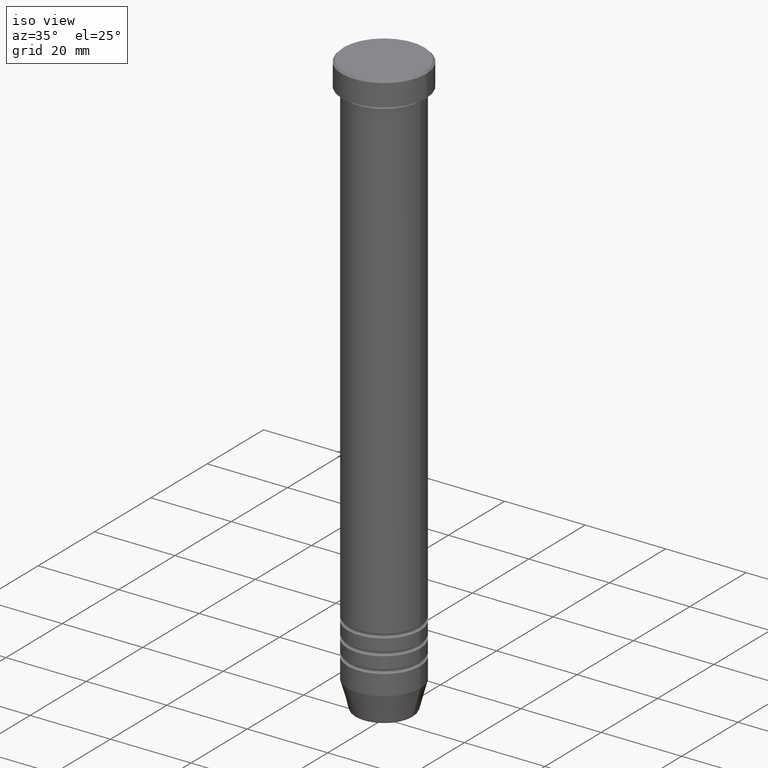
[diagram: clean part render]
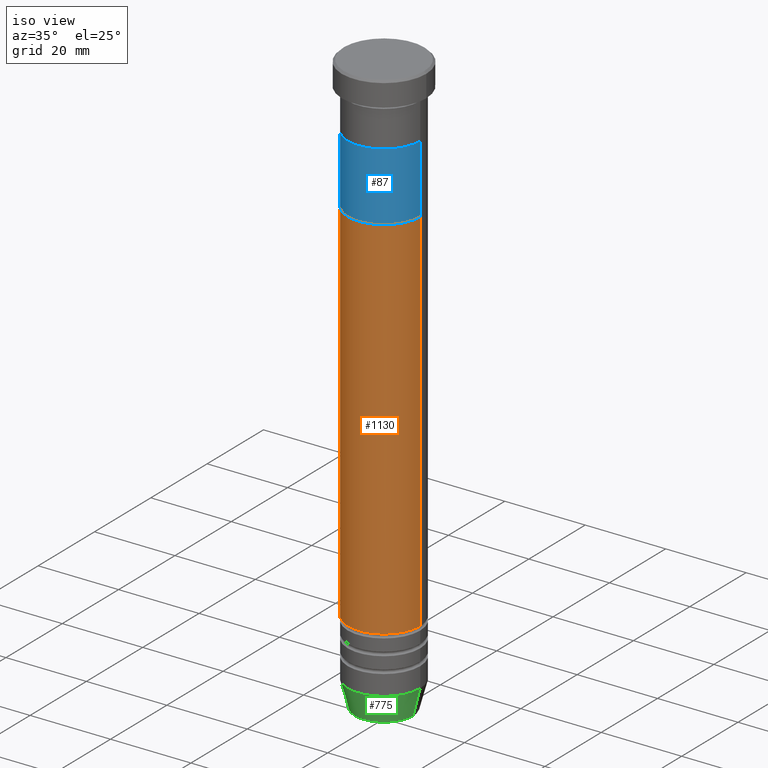
[diagram: same view with three faces highlighted in distinct colors, each labeled with its STEP entity id]
A machine part, iso view with three faces highlighted in distinct colors.
Their STEP definitions:

[orange] entity #1130 — the highlighted cylindrical surface (partial cylindrical patch) has radius 9 mm, axis along (-0, -0, 1).
#7 = CIRCLE ( 'NONE', #114, 9.000000000000000000 ) ;
#10 = DIRECTION ( 'NONE',  ( 1.000000000000000000, 0.000000000000000000, 0.000000000000000000 ) ) ;
#25 = DIRECTION ( 'NONE',  ( -0.000000000000000000, -0.000000000000000000, 1.000000000000000000 ) ) ;
#52 = VERTEX_POINT ( 'NONE', #700 ) ;
#60 = VECTOR ( 'NONE', #25, 1000.000000000000000 ) ;
#84 = CIRCLE ( 'NONE', #665, 8.999999999999992895 ) ;
#114 = AXIS2_PLACEMENT_3D ( 'NONE', #594, #143, #694 ) ;
#143 = DIRECTION ( 'NONE',  ( -0.000000000000000000, -0.000000000000000000, 1.000000000000000000 ) ) ;
#144 = EDGE_LOOP ( 'NONE', ( #855, #834, #1123, #1098 ) ) ;
#182 = DIRECTION ( 'NONE',  ( -0.000000000000000000, -0.000000000000000000, 1.000000000000000000 ) ) ;
#213 = LINE ( 'NONE', #558, #60 ) ;
#246 = EDGE_CURVE ( 'NONE', #52, #868, #962, .T. ) ;
#339 = AXIS2_PLACEMENT_3D ( 'NONE', #606, #893, #529 ) ;
#371 = EDGE_CURVE ( 'NONE', #582, #680, #213, .T. ) ;
#509 = EDGE_CURVE ( 'NONE', #680, #868, #7, .T. ) ;
#517 = VECTOR ( 'NONE', #182, 1000.000000000000000 ) ;
#529 = DIRECTION ( 'NONE',  ( 1.000000000000000000, 0.000000000000000000, 0.000000000000000000 ) ) ;
#534 = DIRECTION ( 'NONE',  ( -0.000000000000000000, -0.000000000000000000, 1.000000000000000000 ) ) ;
#558 = CARTESIAN_POINT ( 'NONE',  ( -8.999999999999996447, 1.102182119232617319E-15, 0.000000000000000000 ) ) ;
#582 = VERTEX_POINT ( 'NONE', #1108 ) ;
#594 = CARTESIAN_POINT ( 'NONE',  ( 0.000000000000000000, 0.000000000000000000, -33.00000000000000000 ) ) ;
#606 = CARTESIAN_POINT ( 'NONE',  ( 0.000000000000000000, 0.000000000000000000, 0.000000000000000000 ) ) ;
#607 = CARTESIAN_POINT ( 'NONE',  ( 0.000000000000000000, 0.000000000000000000, -125.0000000000000284 ) ) ;
#665 = AXIS2_PLACEMENT_3D ( 'NONE', #607, #534, #10 ) ;
#680 = VERTEX_POINT ( 'NONE', #815 ) ;
#694 = DIRECTION ( 'NONE',  ( 1.000000000000000000, 0.000000000000000000, 0.000000000000000000 ) ) ;
#700 = CARTESIAN_POINT ( 'NONE',  ( 8.999999999999992895, 0.000000000000000000, -125.0000000000000284 ) ) ;
#791 = CARTESIAN_POINT ( 'NONE',  ( 8.999999999999996447, 0.000000000000000000, 0.000000000000000000 ) ) ;
#815 = CARTESIAN_POINT ( 'NONE',  ( -9.000000000000000000, 1.102182119232617911E-15, -33.00000000000000000 ) ) ;
#834 = ORIENTED_EDGE ( 'NONE', *, *, #922, .T. ) ;
#855 = ORIENTED_EDGE ( 'NONE', *, *, #371, .F. ) ;
#862 = FACE_OUTER_BOUND ( 'NONE', #144, .T. ) ;
#868 = VERTEX_POINT ( 'NONE', #1148 ) ;
#893 = DIRECTION ( 'NONE',  ( -0.000000000000000000, -0.000000000000000000, 1.000000000000000000 ) ) ;
#922 = EDGE_CURVE ( 'NONE', #582, #52, #84, .T. ) ;
#962 = LINE ( 'NONE', #791, #517 ) ;
#1026 = CYLINDRICAL_SURFACE ( 'NONE', #339, 8.999999999999996447 ) ;
#1098 = ORIENTED_EDGE ( 'NONE', *, *, #509, .F. ) ;
#1108 = CARTESIAN_POINT ( 'NONE',  ( -8.999999999999992895, 1.102182119232617122E-15, -125.0000000000000284 ) ) ;
#1123 = ORIENTED_EDGE ( 'NONE', *, *, #246, .T. ) ;
#1130 = ADVANCED_FACE ( 'NONE', ( #862 ), #1026, .T. ) ;
#1148 = CARTESIAN_POINT ( 'NONE',  ( 9.000000000000000000, 0.000000000000000000, -33.00000000000000000 ) ) ;

[blue] entity #87 — the highlighted cylindrical surface (partial cylindrical patch) has radius 9 mm, axis along (-0, -0, 1).
#3 = DIRECTION ( 'NONE',  ( -1.000000000000000000, 0.000000000000000000, 0.000000000000000000 ) ) ;
#6 = AXIS2_PLACEMENT_3D ( 'NONE', #518, #284, #166 ) ;
#51 = EDGE_CURVE ( 'NONE', #59, #151, #453, .T. ) ;
#58 = VECTOR ( 'NONE', #333, 1000.000000000000000 ) ;
#59 = VERTEX_POINT ( 'NONE', #73 ) ;
#73 = CARTESIAN_POINT ( 'NONE',  ( 9.000000000000000000, 0.000000000000000000, -33.00000000000000000 ) ) ;
#87 = ADVANCED_FACE ( 'NONE', ( #347 ), #424, .T. ) ;
#151 = VERTEX_POINT ( 'NONE', #1072 ) ;
#166 = DIRECTION ( 'NONE',  ( 1.000000000000000000, 0.000000000000000000, 0.000000000000000000 ) ) ;
#185 = EDGE_CURVE ( 'NONE', #758, #747, #1111, .T. ) ;
#254 = DIRECTION ( 'NONE',  ( -0.000000000000000000, -0.000000000000000000, 1.000000000000000000 ) ) ;
#284 = DIRECTION ( 'NONE',  ( -0.000000000000000000, -0.000000000000000000, 1.000000000000000000 ) ) ;
#333 = DIRECTION ( 'NONE',  ( -0.000000000000000000, -0.000000000000000000, 1.000000000000000000 ) ) ;
#347 = FACE_OUTER_BOUND ( 'NONE', #1090, .T. ) ;
#393 = CARTESIAN_POINT ( 'NONE',  ( -9.000000000000000000, 1.102182119232617714E-15, -16.00000000000000000 ) ) ;
#424 = CYLINDRICAL_SURFACE ( 'NONE', #6, 9.000000000000000000 ) ;
#442 = CARTESIAN_POINT ( 'NONE',  ( 0.000000000000000000, 0.000000000000000000, -16.00000000000000000 ) ) ;
#453 = LINE ( 'NONE', #960, #58 ) ;
#470 = AXIS2_PLACEMENT_3D ( 'NONE', #442, #1061, #3 ) ;
#476 = ORIENTED_EDGE ( 'NONE', *, *, #891, .T. ) ;
#493 = CARTESIAN_POINT ( 'NONE',  ( 0.000000000000000000, 0.000000000000000000, -33.00000000000000000 ) ) ;
#518 = CARTESIAN_POINT ( 'NONE',  ( 0.000000000000000000, 0.000000000000000000, -33.00000000000000000 ) ) ;
#589 = VECTOR ( 'NONE', #254, 1000.000000000000000 ) ;
#591 = DIRECTION ( 'NONE',  ( -1.000000000000000000, 0.000000000000000000, 0.000000000000000000 ) ) ;
#658 = DIRECTION ( 'NONE',  ( 0.000000000000000000, 0.000000000000000000, -1.000000000000000000 ) ) ;
#682 = ORIENTED_EDGE ( 'NONE', *, *, #51, .T. ) ;
#719 = EDGE_CURVE ( 'NONE', #59, #758, #903, .T. ) ;
#747 = VERTEX_POINT ( 'NONE', #393 ) ;
#748 = CARTESIAN_POINT ( 'NONE',  ( -9.000000000000000000, 1.102182119232617714E-15, -33.00000000000000000 ) ) ;
#758 = VERTEX_POINT ( 'NONE', #748 ) ;
#844 = ORIENTED_EDGE ( 'NONE', *, *, #719, .F. ) ;
#891 = EDGE_CURVE ( 'NONE', #151, #747, #1142, .T. ) ;
#903 = CIRCLE ( 'NONE', #1120, 9.000000000000000000 ) ;
#926 = CARTESIAN_POINT ( 'NONE',  ( -9.000000000000000000, 1.102182119232617714E-15, -33.00000000000000000 ) ) ;
#960 = CARTESIAN_POINT ( 'NONE',  ( 9.000000000000000000, 0.000000000000000000, -33.00000000000000000 ) ) ;
#1061 = DIRECTION ( 'NONE',  ( 0.000000000000000000, 0.000000000000000000, -1.000000000000000000 ) ) ;
#1072 = CARTESIAN_POINT ( 'NONE',  ( 9.000000000000000000, 0.000000000000000000, -16.00000000000000000 ) ) ;
#1090 = EDGE_LOOP ( 'NONE', ( #1127, #844, #682, #476 ) ) ;
#1111 = LINE ( 'NONE', #926, #589 ) ;
#1120 = AXIS2_PLACEMENT_3D ( 'NONE', #493, #658, #591 ) ;
#1127 = ORIENTED_EDGE ( 'NONE', *, *, #185, .F. ) ;
#1142 = CIRCLE ( 'NONE', #470, 9.000000000000000000 ) ;

[green] entity #775 — the highlighted conical surface has half-angle 15 deg.
#22 = VECTOR ( 'NONE', #619, 1000.000000000000000 ) ;
#45 = VERTEX_POINT ( 'NONE', #986 ) ;
#112 = ORIENTED_EDGE ( 'NONE', *, *, #766, .T. ) ;
#125 = CARTESIAN_POINT ( 'NONE',  ( 0.000000000000000000, 0.000000000000000000, -146.0000000000000284 ) ) ;
#128 = AXIS2_PLACEMENT_3D ( 'NONE', #820, #923, #502 ) ;
#149 = CARTESIAN_POINT ( 'NONE',  ( 9.000000000000000000, 0.000000000000000000, -139.0000000000000000 ) ) ;
#235 = DIRECTION ( 'NONE',  ( -0.000000000000000000, -0.000000000000000000, 1.000000000000000000 ) ) ;
#240 = DIRECTION ( 'NONE',  ( -0.000000000000000000, -0.000000000000000000, 1.000000000000000000 ) ) ;
#261 = CARTESIAN_POINT ( 'NONE',  ( -7.124355652982134579, 8.724819346411922144E-16, -146.0000000000000284 ) ) ;
#268 = LINE ( 'NONE', #261, #22 ) ;
#293 = AXIS2_PLACEMENT_3D ( 'NONE', #125, #240, #1021 ) ;
#294 = EDGE_CURVE ( 'NONE', #45, #848, #268, .T. ) ;
#302 = CARTESIAN_POINT ( 'NONE',  ( 7.124355652982134579, 0.000000000000000000, -146.0000000000000284 ) ) ;
#307 = DIRECTION ( 'NONE',  ( 0.2588190451025213501, 0.000000000000000000, 0.9659258262890680902 ) ) ;
#312 = CIRCLE ( 'NONE', #128, 9.000000000000000000 ) ;
#367 = VECTOR ( 'NONE', #307, 1000.000000000000000 ) ;
#462 = ORIENTED_EDGE ( 'NONE', *, *, #294, .F. ) ;
#467 = ORIENTED_EDGE ( 'NONE', *, *, #738, .T. ) ;
#502 = DIRECTION ( 'NONE',  ( 1.000000000000000000, 0.000000000000000000, 0.000000000000000000 ) ) ;
#515 = CARTESIAN_POINT ( 'NONE',  ( -9.000000000000000000, 1.102182119232617714E-15, -139.0000000000000000 ) ) ;
#521 = CONICAL_SURFACE ( 'NONE', #293, 7.124355652982134579, 0.2617993877991500740 ) ;
#550 = CARTESIAN_POINT ( 'NONE',  ( 7.223655072137190380, 0.000000000000000000, -145.6294095225512990 ) ) ;
#576 = CARTESIAN_POINT ( 'NONE',  ( 0.000000000000000000, 0.000000000000000000, -145.6294095225512990 ) ) ;
#588 = VERTEX_POINT ( 'NONE', #149 ) ;
#613 = AXIS2_PLACEMENT_3D ( 'NONE', #576, #235, #851 ) ;
#619 = DIRECTION ( 'NONE',  ( -0.2588190451025213501, 3.169619151431772337E-17, 0.9659258262890680902 ) ) ;
#659 = EDGE_LOOP ( 'NONE', ( #462, #467, #112, #1023 ) ) ;
#663 = VERTEX_POINT ( 'NONE', #550 ) ;
#707 = EDGE_CURVE ( 'NONE', #848, #588, #312, .T. ) ;
#738 = EDGE_CURVE ( 'NONE', #45, #663, #1096, .T. ) ;
#766 = EDGE_CURVE ( 'NONE', #663, #588, #1099, .T. ) ;
#775 = ADVANCED_FACE ( 'NONE', ( #1012 ), #521, .T. ) ;
#820 = CARTESIAN_POINT ( 'NONE',  ( 0.000000000000000000, 0.000000000000000000, -139.0000000000000000 ) ) ;
#848 = VERTEX_POINT ( 'NONE', #515 ) ;
#851 = DIRECTION ( 'NONE',  ( -1.000000000000000000, 0.000000000000000000, 0.000000000000000000 ) ) ;
#923 = DIRECTION ( 'NONE',  ( -0.000000000000000000, -0.000000000000000000, 1.000000000000000000 ) ) ;
#986 = CARTESIAN_POINT ( 'NONE',  ( -7.223655072137190380, 9.934123627281765110E-16, -145.6294095225512990 ) ) ;
#1012 = FACE_OUTER_BOUND ( 'NONE', #659, .T. ) ;
#1021 = DIRECTION ( 'NONE',  ( 1.000000000000000000, 0.000000000000000000, 0.000000000000000000 ) ) ;
#1023 = ORIENTED_EDGE ( 'NONE', *, *, #707, .F. ) ;
#1096 = CIRCLE ( 'NONE', #613, 7.223655072137189492 ) ;
#1099 = LINE ( 'NONE', #302, #367 ) ;